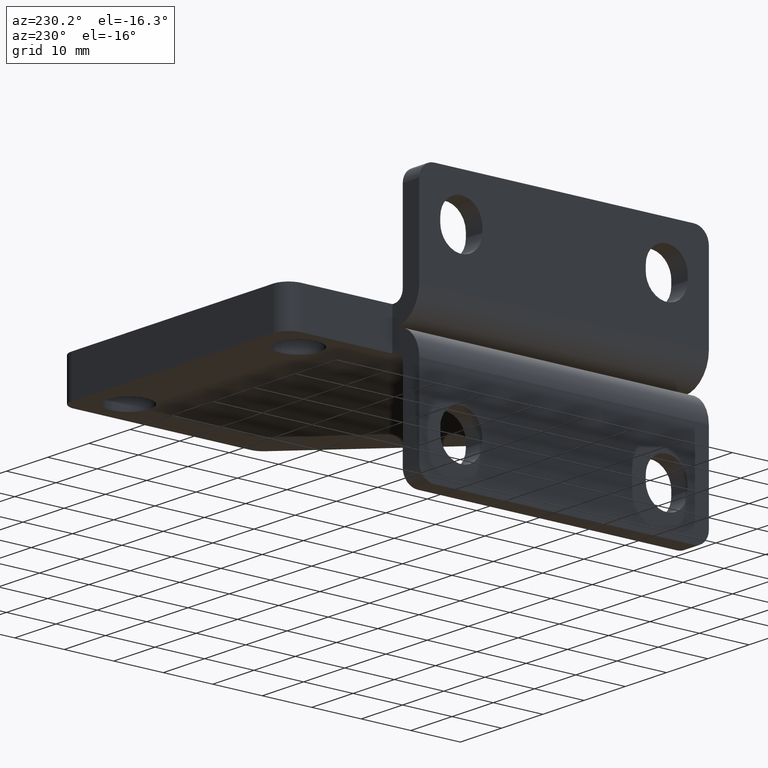
[diagram: clean part render]
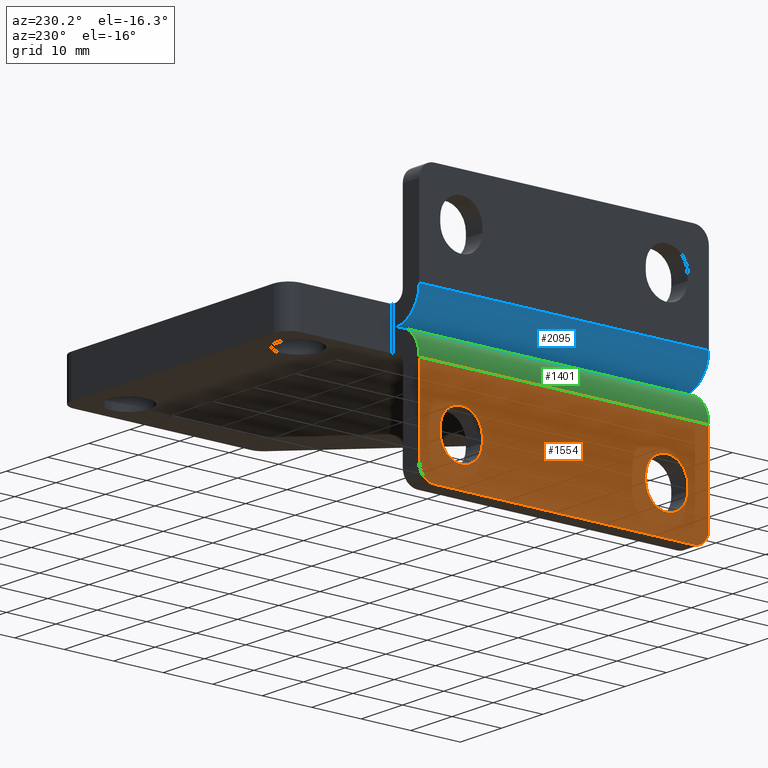
[diagram: same view with three faces highlighted in distinct colors, each labeled with its STEP entity id]
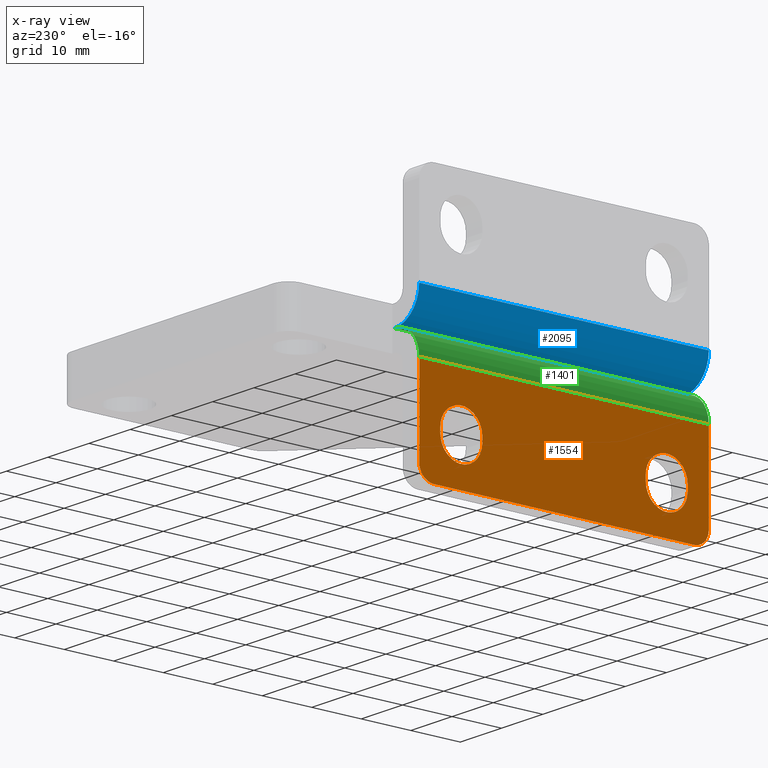
[diagram: x-ray of the same camera — body ghosted, the three highlighted faces saturated]
A machine part, auxiliary view with three faces highlighted in distinct colors.
The next image is the same camera in x-ray (body ghosted, the three faces saturated) — at least one of them is partly hidden behind the body in this view.
Their STEP definitions:

[orange] entity #1554 — the highlighted face is a freeform B-spline surface patch.
#450=CARTESIAN_POINT('',(-52.502768757920641,52.816608483248658,-25.121320343559649));
#451=VERTEX_POINT('',#450);
#467=CARTESIAN_POINT('',(-52.502768757920649,50.695288139689019,-26.0));
#468=VERTEX_POINT('',#467);
#475=CARTESIAN_POINT('',(-52.502768757920641,50.695288139689019,-23.0));
#476=DIRECTION('',(-1.000000000000000,3.516032E-016,-3.516032E-016));
#477=DIRECTION('',(4.972420E-016,0.707106781186546,-0.707106781186549));
#478=AXIS2_PLACEMENT_3D('',#475,#476,#477);
#479=CIRCLE('',#478,3.000000000000000);
#480=EDGE_CURVE('',#451,#468,#479,.T.);
#513=CARTESIAN_POINT('',(-52.502768757920691,-3.926032203870628,-25.121320343559645));
#514=VERTEX_POINT('',#513);
#530=CARTESIAN_POINT('',(-52.502768757920684,-4.804711860310986,-23.0));
#531=VERTEX_POINT('',#530);
#538=CARTESIAN_POINT('',(-52.502768757920684,-1.804711860310988,-23.0));
#539=DIRECTION('',(-1.000000000000000,4.403739E-016,4.403739E-016));
#540=DIRECTION('',(-6.227827E-016,-0.707106781186546,-0.707106781186549));
#541=AXIS2_PLACEMENT_3D('',#538,#539,#540);
#542=CIRCLE('',#541,3.000000000000000);
#543=EDGE_CURVE('',#514,#531,#542,.T.);
#574=CARTESIAN_POINT('',(-52.502768757920649,48.200491959731856,-20.505203820042830));
#575=VERTEX_POINT('',#574);
#584=CARTESIAN_POINT('',(-52.502768757920663,40.945288139689026,-17.500000000000004));
#585=VERTEX_POINT('',#584);
#586=CARTESIAN_POINT('',(-52.502768757920649,45.195288139689026,-17.500000000000004));
#587=DIRECTION('',(1.000000000000000,-4.403739E-016,-4.403739E-016));
#588=DIRECTION('',(-6.227827E-016,-0.707106781186548,-0.707106781186548));
#589=AXIS2_PLACEMENT_3D('',#586,#587,#588);
#590=CIRCLE('',#589,4.250000000000001);
#591=EDGE_CURVE('',#585,#575,#590,.T.);
#637=CARTESIAN_POINT('',(-52.502768757920677,6.700491959731840,-13.494796179957170));
#638=VERTEX_POINT('',#637);
#647=CARTESIAN_POINT('',(-52.502768757920677,7.945288139689013,-16.499999999999996));
#648=VERTEX_POINT('',#647);
#649=CARTESIAN_POINT('',(-52.502768757920677,3.695288139689013,-16.499999999999996));
#650=DIRECTION('',(1.000000000000000,-4.403739E-016,-4.403739E-016));
#651=DIRECTION('',(6.227827E-016,0.707106781186548,0.707106781186548));
#652=AXIS2_PLACEMENT_3D('',#649,#650,#651);
#653=CIRCLE('',#652,4.250000000000001);
#654=EDGE_CURVE('',#648,#638,#653,.T.);
#700=CARTESIAN_POINT('',(-52.502768757920677,0.690084319646184,-20.505203820042830));
#701=VERTEX_POINT('',#700);
#710=CARTESIAN_POINT('',(-52.502768757920677,-0.554711860310988,-17.500000000000004));
#711=VERTEX_POINT('',#710);
#712=CARTESIAN_POINT('',(-52.502768757920677,3.695288139689013,-17.500000000000004));
#713=DIRECTION('',(1.0,-4.403739E-016,-4.403739E-016));
#714=DIRECTION('',(-6.227827E-016,-0.707106781186548,-0.707106781186547));
#715=AXIS2_PLACEMENT_3D('',#712,#713,#714);
#716=CIRCLE('',#715,4.250000000000001);
#717=EDGE_CURVE('',#711,#701,#716,.T.);
#763=CARTESIAN_POINT('',(-52.502768757920649,48.200491959731849,-13.494796179957165));
#764=VERTEX_POINT('',#763);
#773=CARTESIAN_POINT('',(-52.502768757920649,49.445288139689019,-16.499999999999996));
#774=VERTEX_POINT('',#773);
#775=CARTESIAN_POINT('',(-52.502768757920649,45.195288139689026,-16.499999999999996));
#776=DIRECTION('',(1.0,-4.403739E-016,-4.403739E-016));
#777=DIRECTION('',(6.227827E-016,0.707106781186547,0.707106781186548));
#778=AXIS2_PLACEMENT_3D('',#775,#776,#777);
#779=CIRCLE('',#778,4.250000000000001);
#780=EDGE_CURVE('',#774,#764,#779,.T.);
#806=CARTESIAN_POINT('',(-52.502768757920663,40.945288139689026,-16.499999999999996));
#807=VERTEX_POINT('',#806);
#808=CARTESIAN_POINT('',(-52.502768757920663,40.945288139689026,-17.500000000000004));
#809=DIRECTION('',(0.0,0.0,1.0));
#810=VECTOR('',#809,1.000000000000007);
#811=LINE('',#808,#810);
#812=EDGE_CURVE('',#585,#807,#811,.T.);
#866=CARTESIAN_POINT('',(-52.502768757920649,45.195288139689026,-16.499999999999996));
#867=DIRECTION('',(1.0,-4.403739E-016,-4.403739E-016));
#868=DIRECTION('',(6.227827E-016,0.707106781186547,0.707106781186548));
#869=AXIS2_PLACEMENT_3D('',#866,#867,#868);
#870=CIRCLE('',#869,4.250000000000001);
#871=EDGE_CURVE('',#764,#807,#870,.T.);
#881=CARTESIAN_POINT('',(-52.502768757920677,7.945288139689013,-17.500000000000004));
#882=VERTEX_POINT('',#881);
#898=CARTESIAN_POINT('',(-52.502768757920677,7.945288139689013,-16.499999999999996));
#899=DIRECTION('',(0.0,0.0,-1.0));
#900=VECTOR('',#899,1.000000000000007);
#901=LINE('',#898,#900);
#902=EDGE_CURVE('',#648,#882,#901,.T.);
#942=CARTESIAN_POINT('',(-52.502768757920677,3.695288139689013,-17.500000000000004));
#943=DIRECTION('',(1.0,-4.403739E-016,-4.403739E-016));
#944=DIRECTION('',(-6.227827E-016,-0.707106781186548,-0.707106781186547));
#945=AXIS2_PLACEMENT_3D('',#942,#943,#944);
#946=CIRCLE('',#945,4.250000000000001);
#947=EDGE_CURVE('',#701,#882,#946,.T.);
#958=CARTESIAN_POINT('',(-52.502768757920677,-0.554711860310988,-16.499999999999996));
#959=VERTEX_POINT('',#958);
#960=CARTESIAN_POINT('',(-52.502768757920677,-0.554711860310988,-17.500000000000004));
#961=DIRECTION('',(0.0,0.0,1.0));
#962=VECTOR('',#961,1.000000000000007);
#963=LINE('',#960,#962);
#964=EDGE_CURVE('',#711,#959,#963,.T.);
#1018=CARTESIAN_POINT('',(-52.502768757920677,3.695288139689013,-16.499999999999996));
#1019=DIRECTION('',(1.000000000000000,-4.403739E-016,-4.403739E-016));
#1020=DIRECTION('',(6.227827E-016,0.707106781186548,0.707106781186548));
#1021=AXIS2_PLACEMENT_3D('',#1018,#1019,#1020);
#1022=CIRCLE('',#1021,4.250000000000001);
#1023=EDGE_CURVE('',#638,#959,#1022,.T.);
#1064=CARTESIAN_POINT('',(-52.502768757920649,49.445288139689019,-17.500000000000004));
#1065=VERTEX_POINT('',#1064);
#1072=CARTESIAN_POINT('',(-52.502768757920649,45.195288139689026,-17.500000000000004));
#1073=DIRECTION('',(1.000000000000000,-4.403739E-016,-4.403739E-016));
#1074=DIRECTION('',(-6.227827E-016,-0.707106781186548,-0.707106781186548));
#1075=AXIS2_PLACEMENT_3D('',#1072,#1073,#1074);
#1076=CIRCLE('',#1075,4.250000000000001);
#1077=EDGE_CURVE('',#575,#1065,#1076,.T.);
#1088=CARTESIAN_POINT('',(-52.502768757920649,49.445288139689019,-16.499999999999996));
#1089=DIRECTION('',(0.0,0.0,-1.0));
#1090=VECTOR('',#1089,1.000000000000007);
#1091=LINE('',#1088,#1090);
#1092=EDGE_CURVE('',#774,#1065,#1091,.T.);
#1131=CARTESIAN_POINT('',(-52.502768757920684,-1.804711860310988,-26.0));
#1132=VERTEX_POINT('',#1131);
#1133=CARTESIAN_POINT('',(-52.502768757920684,-1.804711860310988,-23.0));
#1134=DIRECTION('',(-1.000000000000000,4.403739E-016,4.403739E-016));
#1135=DIRECTION('',(-6.227827E-016,-0.707106781186546,-0.707106781186549));
#1136=AXIS2_PLACEMENT_3D('',#1133,#1134,#1135);
#1137=CIRCLE('',#1136,3.000000000000000);
#1138=EDGE_CURVE('',#1132,#514,#1137,.T.);
#1164=CARTESIAN_POINT('',(-52.502768757920649,50.695288139689019,-26.0));
#1165=DIRECTION('',(0.0,-1.0,0.0));
#1166=VECTOR('',#1165,52.500000000000007);
#1167=LINE('',#1164,#1166);
#1168=EDGE_CURVE('',#468,#1132,#1167,.T.);
#1266=CARTESIAN_POINT('',(-52.502768757920641,53.695288139689019,-23.0));
#1267=VERTEX_POINT('',#1266);
#1268=CARTESIAN_POINT('',(-52.502768757920641,50.695288139689019,-23.0));
#1269=DIRECTION('',(-1.000000000000000,3.516032E-016,-3.516032E-016));
#1270=DIRECTION('',(4.972420E-016,0.707106781186546,-0.707106781186549));
#1271=AXIS2_PLACEMENT_3D('',#1268,#1269,#1270);
#1272=CIRCLE('',#1271,3.000000000000000);
#1273=EDGE_CURVE('',#1267,#451,#1272,.T.);
#1365=CARTESIAN_POINT('',(-52.502768757920641,53.695288139689019,-5.999999999999998));
#1366=VERTEX_POINT('',#1365);
#1367=CARTESIAN_POINT('',(-52.502768757920691,-4.804711860310986,-5.999999999999998));
#1368=VERTEX_POINT('',#1367);
#1369=CARTESIAN_POINT('',(-52.502768757920641,53.695288139689019,-5.999999999999998));
#1370=DIRECTION('',(0.0,-1.0,0.0));
#1371=VECTOR('',#1370,58.500000000000007);
#1372=LINE('',#1369,#1371);
#1373=EDGE_CURVE('',#1366,#1368,#1372,.T.);
#1513=CARTESIAN_POINT('',(-52.502768757920649,53.695288139689026,-26.0));
#1514=CARTESIAN_POINT('',(-52.502768757920649,53.695288139689026,-5.999999999999993));
#1515=CARTESIAN_POINT('',(-52.502768757920691,-4.804711860310988,-26.0));
#1516=CARTESIAN_POINT('',(-52.502768757920691,-4.804711860310988,-5.999999999999993));
#1517=B_SPLINE_SURFACE_WITH_KNOTS('',1,1,((#1513,#1515),(#1514,#1516)),.UNSPECIFIED.,.F.,.F.,.U.,(2,2),(2,2),(0.0,20.000000000000007),(0.0,58.500000000000014),.UNSPECIFIED.);
#1518=ORIENTED_EDGE('',*,*,#1138,.T.);
#1519=ORIENTED_EDGE('',*,*,#543,.T.);
#1520=CARTESIAN_POINT('',(-52.502768757920684,-4.804711860310986,-23.0));
#1521=DIRECTION('',(0.0,0.0,1.0));
#1522=VECTOR('',#1521,17.0);
#1523=LINE('',#1520,#1522);
#1524=EDGE_CURVE('',#531,#1368,#1523,.T.);
#1525=ORIENTED_EDGE('',*,*,#1524,.T.);
#1526=ORIENTED_EDGE('',*,*,#1373,.F.);
#1527=CARTESIAN_POINT('',(-52.502768757920641,53.695288139689019,-5.999999999999998));
#1528=DIRECTION('',(0.0,0.0,-1.0));
#1529=VECTOR('',#1528,17.0);
#1530=LINE('',#1527,#1529);
#1531=EDGE_CURVE('',#1366,#1267,#1530,.T.);
#1532=ORIENTED_EDGE('',*,*,#1531,.T.);
#1533=ORIENTED_EDGE('',*,*,#1273,.T.);
#1534=ORIENTED_EDGE('',*,*,#480,.T.);
#1535=ORIENTED_EDGE('',*,*,#1168,.T.);
#1536=EDGE_LOOP('',(#1518,#1519,#1525,#1526,#1532,#1533,#1534,#1535));
#1537=FACE_OUTER_BOUND('',#1536,.T.);
#1538=ORIENTED_EDGE('',*,*,#654,.T.);
#1539=ORIENTED_EDGE('',*,*,#1023,.T.);
#1540=ORIENTED_EDGE('',*,*,#964,.F.);
#1541=ORIENTED_EDGE('',*,*,#717,.T.);
#1542=ORIENTED_EDGE('',*,*,#947,.T.);
#1543=ORIENTED_EDGE('',*,*,#902,.F.);
#1544=EDGE_LOOP('',(#1538,#1539,#1540,#1541,#1542,#1543));
#1545=FACE_BOUND('',#1544,.T.);
#1546=ORIENTED_EDGE('',*,*,#780,.T.);
#1547=ORIENTED_EDGE('',*,*,#871,.T.);
#1548=ORIENTED_EDGE('',*,*,#812,.F.);
#1549=ORIENTED_EDGE('',*,*,#591,.T.);
#1550=ORIENTED_EDGE('',*,*,#1077,.T.);
#1551=ORIENTED_EDGE('',*,*,#1092,.F.);
#1552=EDGE_LOOP('',(#1546,#1547,#1548,#1549,#1550,#1551));
#1553=FACE_BOUND('',#1552,.T.);
#1554=ADVANCED_FACE('',(#1537,#1545,#1553),#1517,.F.);

[blue] entity #2095 — the highlighted cylindrical surface (partial cylindrical patch) has radius 6 mm, axis along (-0, 1, 0).
#1375=CARTESIAN_POINT('',(-46.502768757920627,-4.804711860310984,0.0));
#1376=VERTEX_POINT('',#1375);
#1384=CARTESIAN_POINT('',(-46.502768757920649,53.695288139689019,0.0));
#1385=VERTEX_POINT('',#1384);
#1386=CARTESIAN_POINT('',(-46.502768757920627,-4.804711860310984,0.0));
#1387=DIRECTION('',(0.0,1.0,0.0));
#1388=VECTOR('',#1387,58.500000000000000);
#1389=LINE('',#1386,#1388);
#1390=EDGE_CURVE('',#1376,#1385,#1389,.T.);
#2028=CARTESIAN_POINT('',(-52.502768757920641,53.695288139689019,6.0));
#2029=VERTEX_POINT('',#2028);
#2030=CARTESIAN_POINT('',(-46.502768757920649,53.695288139689019,6.000000000000001));
#2031=DIRECTION('',(0.0,1.0,0.0));
#2032=DIRECTION('',(0.0,0.0,-1.0));
#2033=AXIS2_PLACEMENT_3D('',#2030,#2031,#2032);
#2034=CIRCLE('',#2033,6.000000000000001);
#2035=EDGE_CURVE('',#1385,#2029,#2034,.T.);
#2071=CARTESIAN_POINT('',(-46.502768757920649,24.445288139689019,6.000000000000001));
#2072=DIRECTION('',(-1.518254E-016,1.0,0.0));
#2073=DIRECTION('',(0.0,0.0,-1.0));
#2074=AXIS2_PLACEMENT_3D('',#2071,#2072,#2073);
#2075=CYLINDRICAL_SURFACE('',#2074,6.000000000000001);
#2076=CARTESIAN_POINT('',(-52.502768757920641,-4.804711860310984,6.0));
#2077=VERTEX_POINT('',#2076);
#2078=CARTESIAN_POINT('',(-52.502768757920641,53.695288139689019,6.0));
#2079=DIRECTION('',(0.0,-1.0,0.0));
#2080=VECTOR('',#2079,58.500000000000000);
#2081=LINE('',#2078,#2080);
#2082=EDGE_CURVE('',#2029,#2077,#2081,.T.);
#2083=ORIENTED_EDGE('',*,*,#2082,.F.);
#2084=ORIENTED_EDGE('',*,*,#2035,.F.);
#2085=ORIENTED_EDGE('',*,*,#1390,.F.);
#2086=CARTESIAN_POINT('',(-46.502768757920649,-4.804711860310984,6.000000000000001));
#2087=DIRECTION('',(0.0,1.0,0.0));
#2088=DIRECTION('',(0.0,0.0,-1.0));
#2089=AXIS2_PLACEMENT_3D('',#2086,#2087,#2088);
#2090=CIRCLE('',#2089,6.000000000000001);
#2091=EDGE_CURVE('',#1376,#2077,#2090,.T.);
#2092=ORIENTED_EDGE('',*,*,#2091,.T.);
#2093=EDGE_LOOP('',(#2083,#2084,#2085,#2092));
#2094=FACE_OUTER_BOUND('',#2093,.T.);
#2095=ADVANCED_FACE('',(#2094),#2075,.T.);

[green] entity #1401 — the highlighted face is a freeform B-spline surface patch.
#1339=CARTESIAN_POINT('',(-46.502768757920698,-4.804711860310999,-12.000000000000002));
#1340=CARTESIAN_POINT('',(-46.502768757920656,53.695288139689026,-12.000000000000002));
#1341=CARTESIAN_POINT('',(-40.502768757920698,-4.804711860311002,-12.000000000000009));
#1342=CARTESIAN_POINT('',(-40.502768757920656,53.695288139689026,-12.000000000000009));
#1343=CARTESIAN_POINT('',(-40.502768757920691,-4.804711860311002,-6.000000000000008));
#1344=CARTESIAN_POINT('',(-40.502768757920649,53.695288139689019,-6.000000000000008));
#1345=CARTESIAN_POINT('',(-40.502768757920684,-4.804711860311002,-8.881784E-015));
#1346=CARTESIAN_POINT('',(-40.502768757920641,53.695288139689026,-8.881784E-015));
#1347=CARTESIAN_POINT('',(-46.502768757920684,-4.804711860310999,0.0));
#1348=CARTESIAN_POINT('',(-46.502768757920641,53.695288139689026,0.0));
#1349=CARTESIAN_POINT('',(-52.502768757920677,-4.804711860310995,5.329071E-015));
#1350=CARTESIAN_POINT('',(-52.502768757920641,53.695288139689033,5.329071E-015));
#1351=CARTESIAN_POINT('',(-52.502768757920691,-4.804711860310995,-5.999999999999994));
#1352=CARTESIAN_POINT('',(-52.502768757920649,53.695288139689033,-5.999999999999994));
#1353=CARTESIAN_POINT('',(-52.502768757920698,-4.804711860310995,-11.999999999999993));
#1354=CARTESIAN_POINT('',(-52.502768757920663,53.695288139689033,-11.999999999999993));
#1355=CARTESIAN_POINT('',(-46.502768757920698,-4.804711860310999,-12.000000000000002));
#1356=CARTESIAN_POINT('',(-46.502768757920656,53.695288139689026,-12.000000000000002));
#1364=(BOUNDED_SURFACE()B_SPLINE_SURFACE(1,2,((#1339,#1341,#1343,#1345,#1347,#1349,#1351,#1353,#1355),(#1340,#1342,#1344,#1346,#1348,#1350,#1352,#1354,#1356)),.UNSPECIFIED.,.F.,.T.,.U.)B_SPLINE_SURFACE_WITH_KNOTS((2,2),(3,2,2,2,3),(-4.875000000000001,4.875000000000003),(0.0,9.424777960769381,18.849555921538762,28.274333882308142,37.699111843077524),.UNSPECIFIED.)GEOMETRIC_REPRESENTATION_ITEM()RATIONAL_B_SPLINE_SURFACE(((1.0,0.707106781186548,1.0,0.707106781186548,1.0,0.707106781186548,1.0,0.707106781186548,1.0),(1.0,0.707106781186548,1.0,0.707106781186548,1.0,0.707106781186548,1.0,0.707106781186548,1.0)))REPRESENTATION_ITEM('')SURFACE());
#1365=CARTESIAN_POINT('',(-52.502768757920641,53.695288139689019,-5.999999999999998));
#1366=VERTEX_POINT('',#1365);
#1367=CARTESIAN_POINT('',(-52.502768757920691,-4.804711860310986,-5.999999999999998));
#1368=VERTEX_POINT('',#1367);
#1369=CARTESIAN_POINT('',(-52.502768757920641,53.695288139689019,-5.999999999999998));
#1370=DIRECTION('',(0.0,-1.0,0.0));
#1371=VECTOR('',#1370,58.500000000000007);
#1372=LINE('',#1369,#1371);
#1373=EDGE_CURVE('',#1366,#1368,#1372,.T.);
#1374=ORIENTED_EDGE('',*,*,#1373,.T.);
#1375=CARTESIAN_POINT('',(-46.502768757920627,-4.804711860310984,0.0));
#1376=VERTEX_POINT('',#1375);
#1377=CARTESIAN_POINT('',(-46.502768757920691,-4.804711860310991,-6.000000000000001));
#1378=DIRECTION('',(0.0,-1.0,0.0));
#1379=DIRECTION('',(0.0,0.0,1.0));
#1380=AXIS2_PLACEMENT_3D('',#1377,#1378,#1379);
#1381=CIRCLE('',#1380,6.000000000000001);
#1382=EDGE_CURVE('',#1376,#1368,#1381,.T.);
#1383=ORIENTED_EDGE('',*,*,#1382,.F.);
#1384=CARTESIAN_POINT('',(-46.502768757920649,53.695288139689019,0.0));
#1385=VERTEX_POINT('',#1384);
#1386=CARTESIAN_POINT('',(-46.502768757920627,-4.804711860310984,0.0));
#1387=DIRECTION('',(0.0,1.0,0.0));
#1388=VECTOR('',#1387,58.500000000000000);
#1389=LINE('',#1386,#1388);
#1390=EDGE_CURVE('',#1376,#1385,#1389,.T.);
#1391=ORIENTED_EDGE('',*,*,#1390,.T.);
#1392=CARTESIAN_POINT('',(-46.502768757920656,53.695288139689019,-6.000000000000001));
#1393=DIRECTION('',(0.0,-1.0,0.0));
#1394=DIRECTION('',(0.0,0.0,1.0));
#1395=AXIS2_PLACEMENT_3D('',#1392,#1393,#1394);
#1396=CIRCLE('',#1395,6.000000000000001);
#1397=EDGE_CURVE('',#1385,#1366,#1396,.T.);
#1398=ORIENTED_EDGE('',*,*,#1397,.T.);
#1399=EDGE_LOOP('',(#1374,#1383,#1391,#1398));
#1400=FACE_OUTER_BOUND('',#1399,.T.);
#1401=ADVANCED_FACE('',(#1400),#1364,.T.);